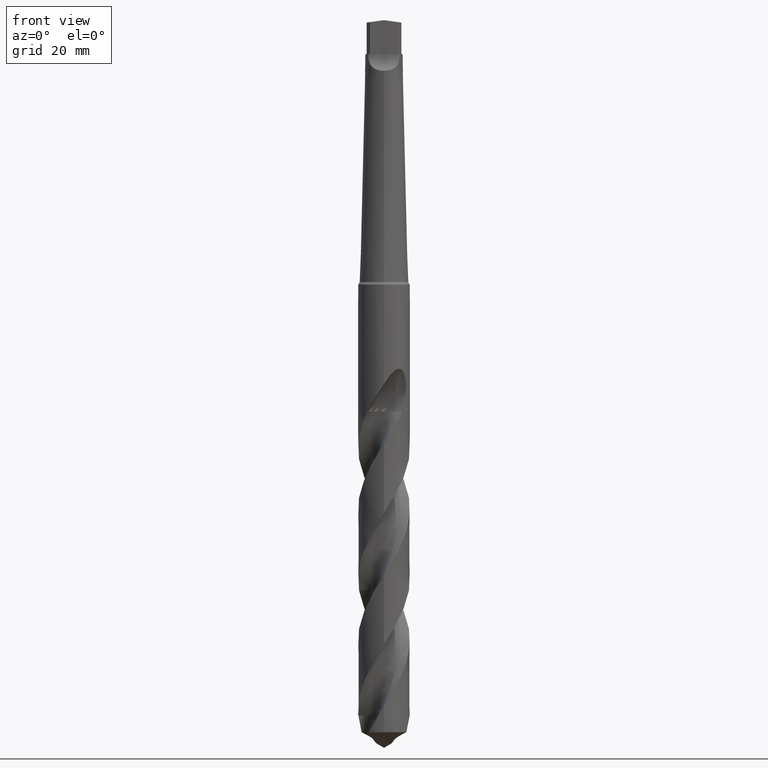
[diagram: clean part render]
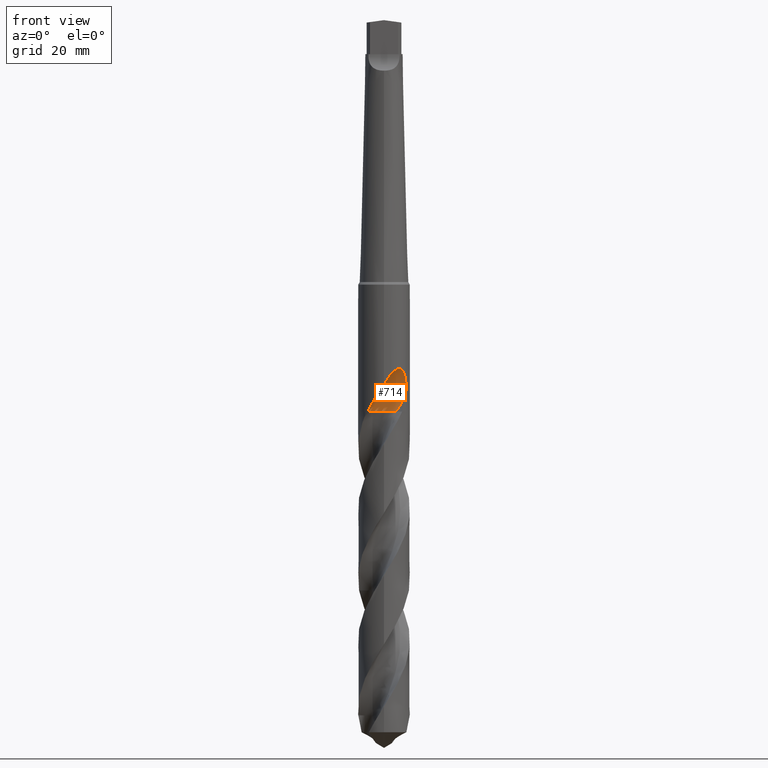
[diagram: same view with one face highlighted and labeled with its STEP entity id]
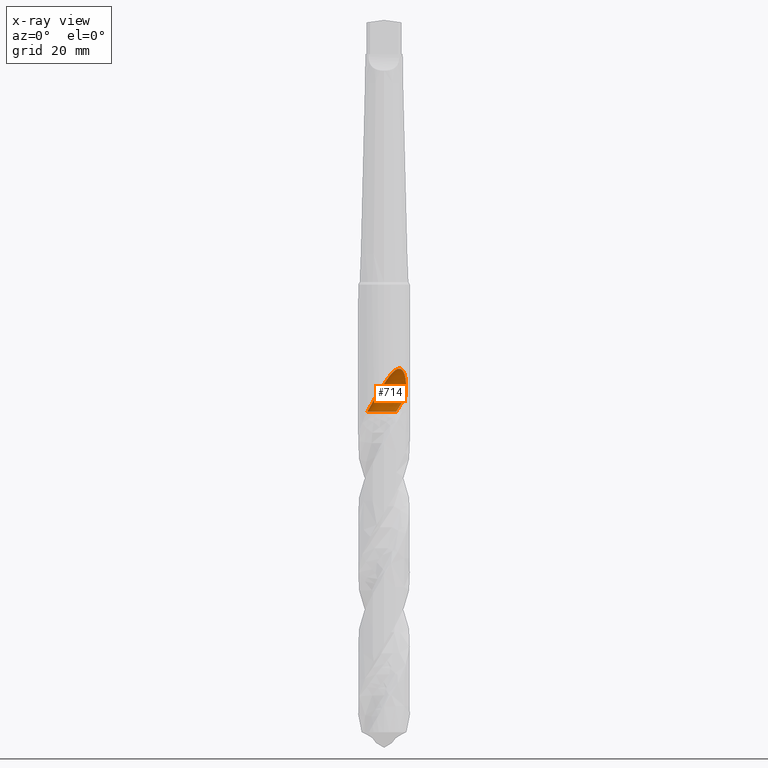
[diagram: x-ray of the same camera — body ghosted, the highlighted face saturated]
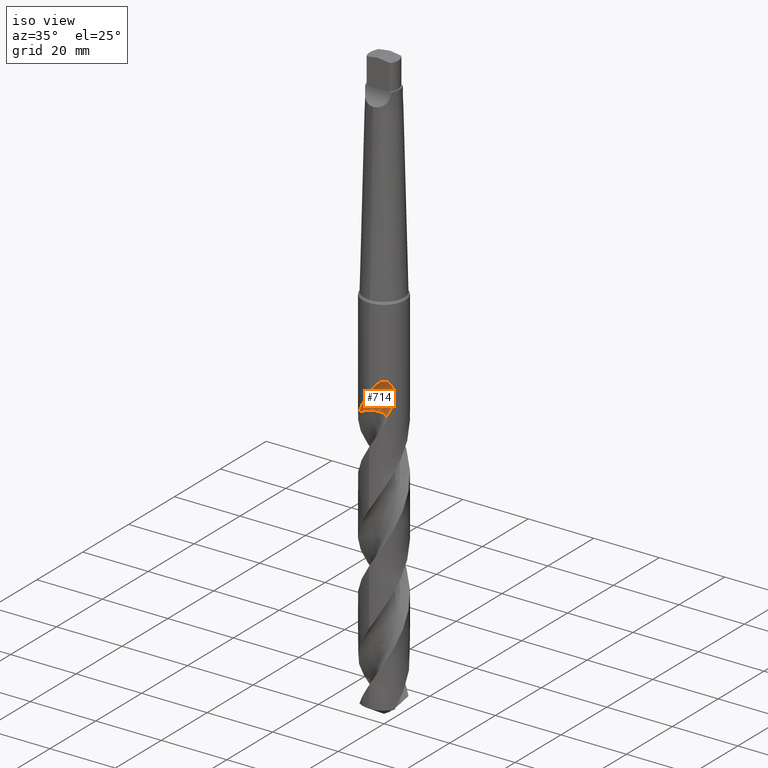
[diagram: same view with one face highlighted and labeled with its STEP entity id]
A machine part, front view. The second image highlights one B-rep face of the part: STEP entity #714.
The next image is the same camera in x-ray: the body ghosted, the highlighted face saturated — about 0% of this face is hidden behind the body in this view.
A second angle (iso view) of the same face is appended — the face is thin or edge-on in the first view.
In plain terms, the highlighted face is a SurfaceOfRevolution surface.
Its self-contained STEP definition (entity closure, byte-faithful):
#512=VERTEX_POINT('',#1040);
#532=EDGE_CURVE('',#730,#512,#1062,.T.);
#536=EDGE_CURVE('',#612,#730,#1066,.T.);
#540=VERTEX_POINT('',#1070);
#612=VERTEX_POINT('',#1147);
#658=EDGE_CURVE('',#512,#540,#1197,.T.);
#694=EDGE_CURVE('',#612,#540,#1236,.T.);
#714=ADVANCED_FACE('',(#1257),#1258,.F.);
#730=VERTEX_POINT('',#1275);
#1040=CARTESIAN_POINT('',(1.98902947877357E-012,-6.5,-28.9956537273547));
#1062=B_SPLINE_CURVE_WITH_KNOTS('',3,(#4264,#4265,#4266,#4267,#4268,#4269,#4270,#4271,#4272,#4273,#4274,#4275,#4276,#4277,#4278,#4279,#4280,#4281,#4282,#4283,#4284,#4285,#4286,#4287,#4288,#4289,#4290,#4291,#4292,#4293),.UNSPECIFIED.,.F.,.F.,(4,2,2,2,2,2,2,2,2,2,2,2,2,2,4),(0.0,3.1809903277017,4.91954110289952,6.49477439006205,8.32513545678558,10.5235474923526,12.4266998005828,13.2899860023741,13.9209877630421,14.5181294194324,15.2756834481871,16.384053317848,17.9597049006676,18.990487032212,20.0737581101875),.UNSPECIFIED.);
#1066=B_SPLINE_CURVE_WITH_KNOTS('',3,(#4298,#4299,#4300,#4301,#4302,#4303,#4304,#4305,#4306,#4307,#4308,#4309,#4310,#4311,#4312,#4313),.UNSPECIFIED.,.F.,.F.,(4,2,2,2,2,2,2,4),(0.0,1.69304509902843,3.38597925186546,5.07874811958079,6.77136321170426,8.46389888631448,9.48513144036612,10.5063855559652),.UNSPECIFIED.);
#1070=CARTESIAN_POINT('',(5.2886740614499,-3.77887902316904,-32.3457285140225));
#1147=CARTESIAN_POINT('',(3.06725438271398,-3.21954414970437,-35.9));
#1197=B_SPLINE_CURVE_WITH_KNOTS('',3,(#5408,#5409,#5410,#5411,#5412,#5413,#5414,#5415,#5416,#5417,#5418,#5419,#5420,#5421,#5422,#5423,#5424,#5425,#5426,#5427,#5428,#5429,#5430,#5431,#5432,#5433,#5434,#5435,#5436,#5437),.UNSPECIFIED.,.F.,.F.,(4,2,2,2,2,2,2,2,2,2,2,2,2,2,4),(0.0,3.1809903277017,4.91954110289952,6.49477439006205,8.32513545678558,10.5235474923526,12.4266998005828,13.2899860023741,13.9209877630421,14.5181294194324,15.2756834481871,16.384053317848,17.9597049006676,18.990487032212,20.0737581101875),.UNSPECIFIED.);
#1236=CIRCLE('',#6512,28.2441893352658);
#1257=FACE_OUTER_BOUND('',#6689,.T.);
#1258=SURFACE_OF_REVOLUTION('',#6690,#6691);
#1275=CARTESIAN_POINT('',(-4.1395188834721,-5.01142528761808,-35.9));
#4264=CARTESIAN_POINT('',(-4.1395188834721,-5.01142528761808,-35.9));
#4265=CARTESIAN_POINT('',(-3.710939633576,-5.36543872614874,-34.997063539087));
#4266=CARTESIAN_POINT('',(-3.21836817802653,-5.68003057835878,-34.1550521977625));
#4267=CARTESIAN_POINT('',(-2.3594727406426,-6.06577304764529,-32.7481972438205));
#4268=CARTESIAN_POINT('',(-2.05022107642257,-6.17679948091023,-32.252903665723));
#4269=CARTESIAN_POINT('',(-1.45146878546427,-6.34274946418171,-31.2940091759847));
#4270=CARTESIAN_POINT('',(-1.16463030583795,-6.40137932375165,-30.834859972935));
#4271=CARTESIAN_POINT('',(-0.543691685916994,-6.48597261458282,-29.8452006731949));
#4272=CARTESIAN_POINT('',(-0.204391774594324,-6.50580165423902,-29.3069260604782));
#4273=CARTESIAN_POINT('',(0.549067501043602,-6.48981063316087,-28.1555124164234));
#4274=CARTESIAN_POINT('',(0.995820184753461,-6.44070008926963,-27.5003467560075));
#4275=CARTESIAN_POINT('',(1.85687690708438,-6.24260250905468,-26.4208203866682));
#4276=CARTESIAN_POINT('',(2.33287475104792,-6.09187146380076,-25.894524331624));
#4277=CARTESIAN_POINT('',(3.05352277581435,-5.7435516742493,-25.4013938945918));
#4278=CARTESIAN_POINT('',(3.29221786463922,-5.61196846664082,-25.2794492883455));
#4279=CARTESIAN_POINT('',(3.71047511146385,-5.34103532698407,-25.1857924847675));
#4280=CARTESIAN_POINT('',(3.88202985549942,-5.21764771202731,-25.184061499913));
#4281=CARTESIAN_POINT('',(4.20156306436699,-4.96349427750833,-25.2661037370722));
#4282=CARTESIAN_POINT('',(4.34131224901716,-4.8407419994764,-25.3430122148751));
#4283=CARTESIAN_POINT('',(4.62570545946774,-4.5717360011083,-25.583637898744));
#4284=CARTESIAN_POINT('',(4.75727913732759,-4.43232908248177,-25.7612951460687));
#4285=CARTESIAN_POINT('',(5.02678484231783,-4.1279241258795,-26.2477724665436));
#4286=CARTESIAN_POINT('',(5.15560071068611,-3.96215569977288,-26.6085961541456));
#4287=CARTESIAN_POINT('',(5.39782003744105,-3.62931626605981,-27.6181189296788));
#4288=CARTESIAN_POINT('',(5.48537824868718,-3.48755829802704,-28.3370810112656));
#4289=CARTESIAN_POINT('',(5.52867094775427,-3.4183096248535,-29.6675409909747));
#4290=CARTESIAN_POINT('',(5.51846664930011,-3.43522913776717,-30.197292970912));
#4291=CARTESIAN_POINT('',(5.44647300344411,-3.5483308057084,-31.2724201728284));
#4292=CARTESIAN_POINT('',(5.38220445249631,-3.64797995229337,-31.8137490490913));
#4293=CARTESIAN_POINT('',(5.28867406144991,-3.77887902316903,-32.3457285140225));
#4298=CARTESIAN_POINT('',(3.06725438271398,-3.21954414970437,-35.9));
#4299=CARTESIAN_POINT('',(2.66822705640324,-2.82046236428803,-35.9));
#4300=CARTESIAN_POINT('',(2.19506443580972,-2.50313272839043,-35.9));
#4301=CARTESIAN_POINT('',(1.15376943041478,-2.06773013971415,-35.9));
#4302=CARTESIAN_POINT('',(0.595596248147967,-1.95380595449589,-35.9));
#4303=CARTESIAN_POINT('',(-0.532943975247292,-1.9463433781415,-35.9));
#4304=CARTESIAN_POINT('',(-1.09251993179193,-2.05285505133861,-35.9));
#4305=CARTESIAN_POINT('',(-2.13929406557831,-2.47437423945477,-35.9));
#4306=CARTESIAN_POINT('',(-2.61648808991816,-2.78533190606791,-35.9));
#4307=CARTESIAN_POINT('',(-3.42479736928161,-3.57265202804565,-35.9));
#4308=CARTESIAN_POINT('',(-3.74818769168187,-4.0414757918638,-35.9));
#4309=CARTESIAN_POINT('',(-4.10804437353049,-4.87140214398244,-35.9));
#4310=CARTESIAN_POINT('',(-4.20618647805856,-5.19858947138558,-35.9));
#4311=CARTESIAN_POINT('',(-4.32385705053202,-5.86916961311432,-35.9));
#4312=CARTESIAN_POINT('',(-4.34297474427195,-6.21023117120063,-35.9));
#4313=CARTESIAN_POINT('',(-4.32198144578245,-6.55,-35.9));
#5408=CARTESIAN_POINT('',(-4.1395188834721,-5.01142528761808,-35.9));
#5409=CARTESIAN_POINT('',(-3.710939633576,-5.36543872614874,-34.997063539087));
#5410=CARTESIAN_POINT('',(-3.21836817802653,-5.68003057835878,-34.1550521977625));
#5411=CARTESIAN_POINT('',(-2.3594727406426,-6.06577304764529,-32.7481972438205));
#5412=CARTESIAN_POINT('',(-2.05022107642257,-6.17679948091023,-32.252903665723));
#5413=CARTESIAN_POINT('',(-1.45146878546427,-6.34274946418171,-31.2940091759847));
#5414=CARTESIAN_POINT('',(-1.16463030583795,-6.40137932375165,-30.834859972935));
#5415=CARTESIAN_POINT('',(-0.543691685916994,-6.48597261458282,-29.8452006731949));
#5416=CARTESIAN_POINT('',(-0.204391774594324,-6.50580165423902,-29.3069260604782));
#5417=CARTESIAN_POINT('',(0.549067501043602,-6.48981063316087,-28.1555124164234));
#5418=CARTESIAN_POINT('',(0.995820184753461,-6.44070008926963,-27.5003467560075));
#5419=CARTESIAN_POINT('',(1.85687690708438,-6.24260250905468,-26.4208203866682));
#5420=CARTESIAN_POINT('',(2.33287475104792,-6.09187146380076,-25.894524331624));
#5421=CARTESIAN_POINT('',(3.05352277581435,-5.7435516742493,-25.4013938945918));
#5422=CARTESIAN_POINT('',(3.29221786463922,-5.61196846664082,-25.2794492883455));
#5423=CARTESIAN_POINT('',(3.71047511146385,-5.34103532698407,-25.1857924847675));
#5424=CARTESIAN_POINT('',(3.88202985549942,-5.21764771202731,-25.184061499913));
#5425=CARTESIAN_POINT('',(4.20156306436699,-4.96349427750833,-25.2661037370722));
#5426=CARTESIAN_POINT('',(4.34131224901716,-4.8407419994764,-25.3430122148751));
#5427=CARTESIAN_POINT('',(4.62570545946774,-4.5717360011083,-25.583637898744));
#5428=CARTESIAN_POINT('',(4.75727913732759,-4.43232908248177,-25.7612951460687));
#5429=CARTESIAN_POINT('',(5.02678484231783,-4.1279241258795,-26.2477724665436));
#5430=CARTESIAN_POINT('',(5.15560071068611,-3.96215569977288,-26.6085961541456));
#5431=CARTESIAN_POINT('',(5.39782003744105,-3.62931626605981,-27.6181189296788));
#5432=CARTESIAN_POINT('',(5.48537824868718,-3.48755829802704,-28.3370810112656));
#5433=CARTESIAN_POINT('',(5.52867094775427,-3.4183096248535,-29.6675409909747));
#5434=CARTESIAN_POINT('',(5.51846664930011,-3.43522913776717,-30.197292970912));
#5435=CARTESIAN_POINT('',(5.44647300344411,-3.5483308057084,-31.2724201728284));
#5436=CARTESIAN_POINT('',(5.38220445249631,-3.64797995229337,-31.8137490490913));
#5437=CARTESIAN_POINT('',(5.28867406144991,-3.77887902316903,-32.3457285140225));
#6512=AXIS2_PLACEMENT_3D('',#7424,#7425,#7426);
#6689=EDGE_LOOP('',(#7436,#7437,#7438,#7439));
#6690=(B_SPLINE_CURVE(3,(#7441,#7442,#7443,#7444,#7445,#7446,#7447,#7448,#7449),.UNSPECIFIED.,.F.,.F.)B_SPLINE_CURVE_WITH_KNOTS((4,1,3,1,4),(-2.85636932981417,-2.55358173924988,-2.25079414868559,-1.9480065581213,-1.64521896755701),.UNSPECIFIED.)RATIONAL_B_SPLINE_CURVE((1.09168032499973,1.03056010833324,0.969439891666758,1.03056010833324,1.09168032499973,1.03056010833324,0.969439891666758,1.03056010833324,1.09168032499973))BOUNDED_CURVE()REPRESENTATION_ITEM('')GEOMETRIC_REPRESENTATION_ITEM()CURVE());
#6691=AXIS1_PLACEMENT('',#7456,#7457);
#7424=CARTESIAN_POINT('',(2.20341888195163,-31.41666665,-37.2821368012198));
#7425=DIRECTION('',(0.847998304005088,-8.90701073069925E-018,-0.52999894000318));
#7426=DIRECTION('',(0.0535598123793801,0.994880693114744,0.0856956998070082));
#7436=ORIENTED_EDGE('',*,*,#536,.F.);
#7437=ORIENTED_EDGE('',*,*,#694,.T.);
#7438=ORIENTED_EDGE('',*,*,#658,.F.);
#7439=ORIENTED_EDGE('',*,*,#532,.F.);
#7441=CARTESIAN_POINT('',(3.06412938271398,-3.21920394728604,-35.905));
#7442=CARTESIAN_POINT('',(2.46395475117752,-2.61902116092641,-35.905));
#7443=CARTESIAN_POINT('',(0.903327134549432,-1.7662179714569,-35.905));
#7444=CARTESIAN_POINT('',(-0.865247781883881,-1.95323295137701,-35.905));
#7445=CARTESIAN_POINT('',(-1.65008490405891,-2.27643514357,-35.905));
#7446=CARTESIAN_POINT('',(-2.43492202623395,-2.59963733576299,-35.905));
#7447=CARTESIAN_POINT('',(-3.82231763330777,-3.71227621124051,-35.905));
#7448=CARTESIAN_POINT('',(-4.3298348933826,-5.41675797074331,-35.905));
#7449=CARTESIAN_POINT('',(-4.3333176667973,-6.26553169540241,-35.905));
#7456=CARTESIAN_POINT('',(2.20341888195163,-31.41666665,-37.2821368012198));
#7457=DIRECTION('',(-0.847998304005088,0.0,0.52999894000318));